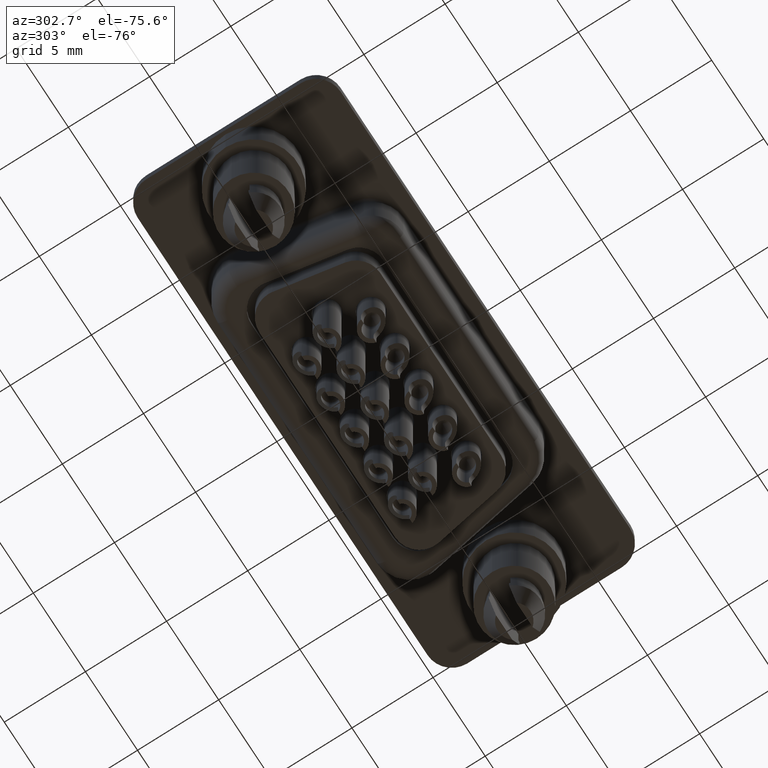
[diagram: clean part render]
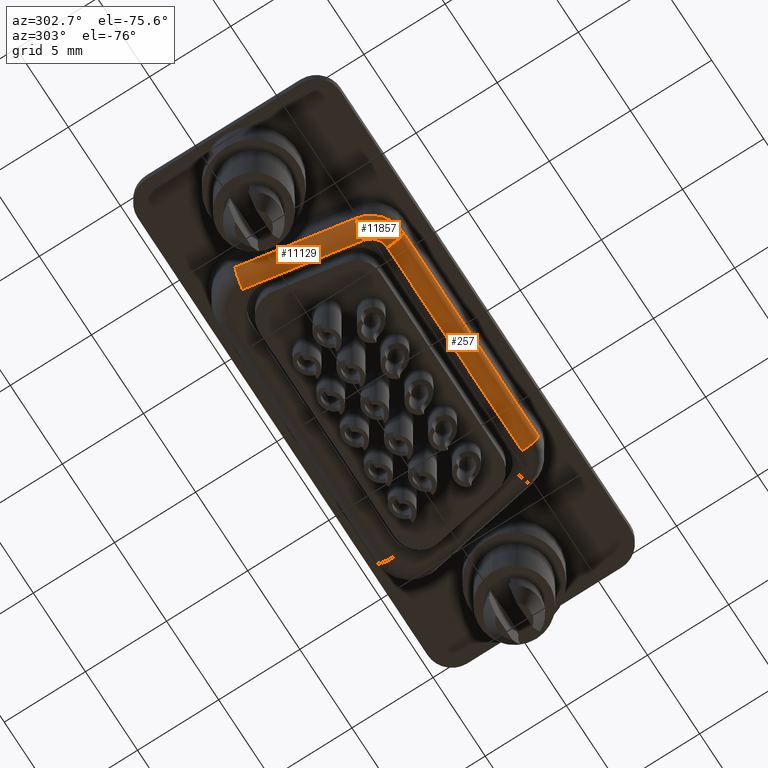
[diagram: same view with one multi-face feature highlighted, each face labeled with its STEP entity id]
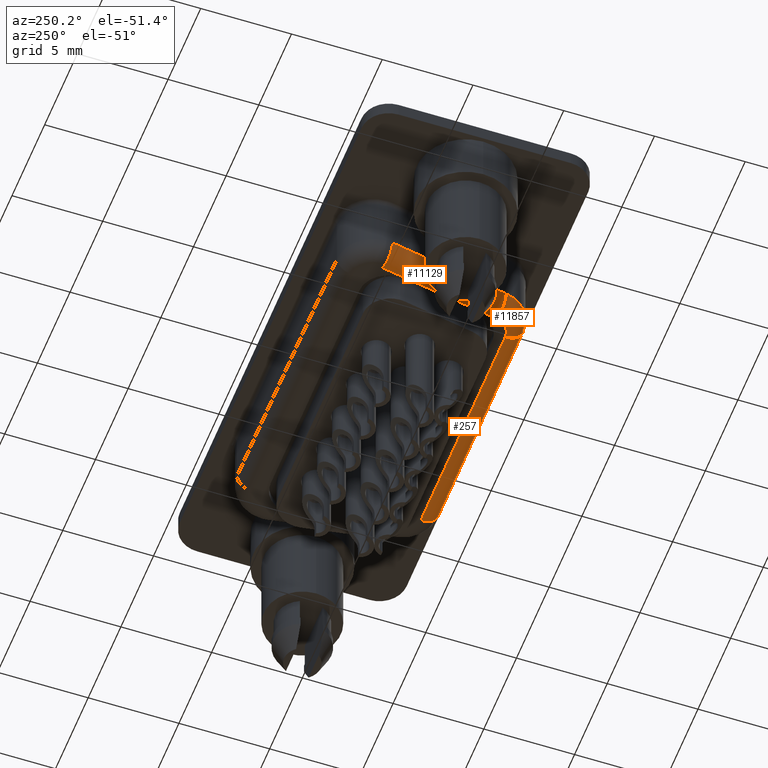
[diagram: same view with one multi-face feature highlighted, each face labeled with its STEP entity id]
A machine part, auxiliary view. The highlighted faces form ONE feature: a constant-radius fillet chain: 3 tangent blend faces with common blend radius 1 mm. The faces share edges in the B-rep.
A second angle (auxiliary view) of the same feature is appended — it is thin or edge-on in the first view.
Their STEP definitions:
[1] entity #11857 (Torus):
#57 = TOROIDAL_SURFACE ( 'NONE', #6810, 0.9999999999999965600, 1.000000000000000000 ) ;
#556 = ORIENTED_EDGE ( 'NONE', *, *, #10045, .F. ) ;
#1896 = VERTEX_POINT ( 'NONE', #10296 ) ;
#1998 = DIRECTION ( 'NONE',  ( 0.0000000000000000000, -0.0000000000000000000, 1.000000000000000000 ) ) ;
#2105 = DIRECTION ( 'NONE',  ( 1.000000000000000000, 0.0000000000000000000, 0.0000000000000000000 ) ) ;
#2385 = CARTESIAN_POINT ( 'NONE',  ( 6.031390770746658500, -3.350000000000002300, -4.500000000000000000 ) ) ;
#2820 = EDGE_CURVE ( 'NONE', #10272, #1896, #8874, .T. ) ;
#3702 = DIRECTION ( 'NONE',  ( 0.0000000000000000000, -0.0000000000000000000, 1.000000000000000000 ) ) ;
#3781 = DIRECTION ( 'NONE',  ( 0.0000000000000000000, 0.0000000000000000000, 1.000000000000000000 ) ) ;
#4282 = DIRECTION ( 'NONE',  ( -1.000000000000000000, -0.0000000000000000000, -0.0000000000000000000 ) ) ;
#5641 = EDGE_CURVE ( 'NONE', #10272, #11968, #14520, .T. ) ;
#6347 = CARTESIAN_POINT ( 'NONE',  ( 5.046583017734453100, -3.523648177666926200, -3.499999999999999600 ) ) ;
#6532 = AXIS2_PLACEMENT_3D ( 'NONE', #11919, #3702, #13254 ) ;
#6803 = CARTESIAN_POINT ( 'NONE',  ( 6.031390770746658500, -4.350000000000002300, -3.499999999999999600 ) ) ;
#6810 = AXIS2_PLACEMENT_3D ( 'NONE', #15639, #1998, #7542 ) ;
#6991 = VERTEX_POINT ( 'NONE', #8741 ) ;
#7542 = DIRECTION ( 'NONE',  ( 1.000000000000000000, 0.0000000000000000000, 0.0000000000000000000 ) ) ;
#7733 = DIRECTION ( 'NONE',  ( -0.9848077530122092400, -0.1736481776669239800, 0.0000000000000000000 ) ) ;
#8277 = CARTESIAN_POINT ( 'NONE',  ( 6.031390770746658500, -4.350000000000002300, -4.500000000000000000 ) ) ;
#8678 = ORIENTED_EDGE ( 'NONE', *, *, #5641, .T. ) ;
#8741 = CARTESIAN_POINT ( 'NONE',  ( 4.061775264722247600, -3.697296355333849100, -3.499999999999999600 ) ) ;
#8874 = CIRCLE ( 'NONE', #11953, 0.9999999999999965600 ) ;
#10045 = EDGE_CURVE ( 'NONE', #6991, #11968, #10668, .T. ) ;
#10157 = FACE_OUTER_BOUND ( 'NONE', #12540, .T. ) ;
#10272 = VERTEX_POINT ( 'NONE', #8277 ) ;
#10296 = CARTESIAN_POINT ( 'NONE',  ( 5.046583017734453100, -3.523648177666926200, -4.500000000000000000 ) ) ;
#10447 = AXIS2_PLACEMENT_3D ( 'NONE', #6347, #15850, #7733 ) ;
#10518 = CARTESIAN_POINT ( 'NONE',  ( 6.031390770746658500, -5.350000000000002300, -3.499999999999999600 ) ) ;
#10668 = CIRCLE ( 'NONE', #6532, 1.999999999999996700 ) ;
#11083 = AXIS2_PLACEMENT_3D ( 'NONE', #6803, #4282, #3781 ) ;
#11739 = ORIENTED_EDGE ( 'NONE', *, *, #2820, .F. ) ;
#11857 = ADVANCED_FACE ( 'NONE', ( #10157 ), #57, .T. ) ;
#11919 = CARTESIAN_POINT ( 'NONE',  ( 6.031390770746658500, -3.350000000000002300, -3.499999999999999600 ) ) ;
#11953 = AXIS2_PLACEMENT_3D ( 'NONE', #2385, #13619, #2105 ) ;
#11968 = VERTEX_POINT ( 'NONE', #10518 ) ;
#12540 = EDGE_LOOP ( 'NONE', ( #8678, #556, #14416, #11739 ) ) ;
#13254 = DIRECTION ( 'NONE',  ( 1.000000000000000000, 0.0000000000000000000, 0.0000000000000000000 ) ) ;
#13619 = DIRECTION ( 'NONE',  ( -0.0000000000000000000, 0.0000000000000000000, -1.000000000000000000 ) ) ;
#14416 = ORIENTED_EDGE ( 'NONE', *, *, #16104, .F. ) ;
#14520 = CIRCLE ( 'NONE', #11083, 1.000000000000000000 ) ;
#15639 = CARTESIAN_POINT ( 'NONE',  ( 6.031390770746658500, -3.350000000000002300, -3.499999999999999600 ) ) ;
#15850 = DIRECTION ( 'NONE',  ( -0.1736481776669239800, 0.9848077530122093500, 0.0000000000000000000 ) ) ;
#16104 = EDGE_CURVE ( 'NONE', #1896, #6991, #16418, .T. ) ;
#16418 = CIRCLE ( 'NONE', #10447, 0.9999999999999996700 ) ;
[2] entity #257 (Cylinder):
#46 = CYLINDRICAL_SURFACE ( 'NONE', #17483, 1.000000000000000000 ) ;
#157 = EDGE_CURVE ( 'NONE', #577, #16551, #8229, .T. ) ;
#257 = ADVANCED_FACE ( 'NONE', ( #14159 ), #46, .T. ) ;
#577 = VERTEX_POINT ( 'NONE', #6097 ) ;
#727 = EDGE_CURVE ( 'NONE', #577, #10272, #7156, .T. ) ;
#1258 = LINE ( 'NONE', #5059, #4480 ) ;
#1616 = EDGE_LOOP ( 'NONE', ( #15707, #7644, #10746, #8492 ) ) ;
#1923 = AXIS2_PLACEMENT_3D ( 'NONE', #13142, #17139, #14293 ) ;
#3496 = VECTOR ( 'NONE', #11776, 1000.000000000000000 ) ;
#3781 = DIRECTION ( 'NONE',  ( 0.0000000000000000000, 0.0000000000000000000, 1.000000000000000000 ) ) ;
#4282 = DIRECTION ( 'NONE',  ( -1.000000000000000000, -0.0000000000000000000, -0.0000000000000000000 ) ) ;
#4480 = VECTOR ( 'NONE', #9279, 1000.000000000000000 ) ;
#5059 = CARTESIAN_POINT ( 'NONE',  ( 6.031390770746658500, -5.350000000000002300, -3.499999999999999600 ) ) ;
#5641 = EDGE_CURVE ( 'NONE', #10272, #11968, #14520, .T. ) ;
#6097 = CARTESIAN_POINT ( 'NONE',  ( 18.96860922925333500, -4.349999999999998800, -4.500000000000000000 ) ) ;
#6803 = CARTESIAN_POINT ( 'NONE',  ( 6.031390770746658500, -4.350000000000002300, -3.499999999999999600 ) ) ;
#7156 = LINE ( 'NONE', #10887, #3496 ) ;
#7644 = ORIENTED_EDGE ( 'NONE', *, *, #14496, .F. ) ;
#8229 = CIRCLE ( 'NONE', #1923, 1.000000000000000000 ) ;
#8277 = CARTESIAN_POINT ( 'NONE',  ( 6.031390770746658500, -4.350000000000002300, -4.500000000000000000 ) ) ;
#8468 = CARTESIAN_POINT ( 'NONE',  ( 18.96860922925333500, -5.349999999999998800, -3.499999999999999600 ) ) ;
#8492 = ORIENTED_EDGE ( 'NONE', *, *, #727, .F. ) ;
#9279 = DIRECTION ( 'NONE',  ( 1.000000000000000000, -0.0000000000000000000, -0.0000000000000000000 ) ) ;
#10272 = VERTEX_POINT ( 'NONE', #8277 ) ;
#10518 = CARTESIAN_POINT ( 'NONE',  ( 6.031390770746658500, -5.350000000000002300, -3.499999999999999600 ) ) ;
#10647 = CARTESIAN_POINT ( 'NONE',  ( 6.031390770746658500, -4.350000000000002300, -3.499999999999999600 ) ) ;
#10746 = ORIENTED_EDGE ( 'NONE', *, *, #5641, .F. ) ;
#10887 = CARTESIAN_POINT ( 'NONE',  ( 6.031390770746658500, -4.350000000000002300, -4.500000000000000000 ) ) ;
#11083 = AXIS2_PLACEMENT_3D ( 'NONE', #6803, #4282, #3781 ) ;
#11496 = DIRECTION ( 'NONE',  ( 0.0000000000000000000, 0.0000000000000000000, 1.000000000000000000 ) ) ;
#11522 = DIRECTION ( 'NONE',  ( -1.000000000000000000, 0.0000000000000000000, 0.0000000000000000000 ) ) ;
#11776 = DIRECTION ( 'NONE',  ( -1.000000000000000000, 0.0000000000000000000, 0.0000000000000000000 ) ) ;
#11968 = VERTEX_POINT ( 'NONE', #10518 ) ;
#13142 = CARTESIAN_POINT ( 'NONE',  ( 18.96860922925333500, -4.349999999999998800, -3.499999999999999600 ) ) ;
#14159 = FACE_OUTER_BOUND ( 'NONE', #1616, .T. ) ;
#14293 = DIRECTION ( 'NONE',  ( 0.0000000000000000000, 0.0000000000000000000, 1.000000000000000000 ) ) ;
#14496 = EDGE_CURVE ( 'NONE', #11968, #16551, #1258, .T. ) ;
#14520 = CIRCLE ( 'NONE', #11083, 1.000000000000000000 ) ;
#15707 = ORIENTED_EDGE ( 'NONE', *, *, #157, .T. ) ;
#16551 = VERTEX_POINT ( 'NONE', #8468 ) ;
#17139 = DIRECTION ( 'NONE',  ( -1.000000000000000000, -0.0000000000000000000, -0.0000000000000000000 ) ) ;
#17483 = AXIS2_PLACEMENT_3D ( 'NONE', #10647, #11522, #11496 ) ;
[3] entity #11129 (Cylinder):
#212 = AXIS2_PLACEMENT_3D ( 'NONE', #5416, #14923, #6802 ) ;
#286 = CARTESIAN_POINT ( 'NONE',  ( 2.880384493975575400, 3.002703644666156800, -3.499999999999999600 ) ) ;
#605 = VECTOR ( 'NONE', #3997, 999.9999999999998900 ) ;
#982 = DIRECTION ( 'NONE',  ( -0.1736481776669240900, 0.9848077530122092400, 0.0000000000000000000 ) ) ;
#1364 = FACE_OUTER_BOUND ( 'NONE', #10051, .T. ) ;
#1896 = VERTEX_POINT ( 'NONE', #10296 ) ;
#2698 = EDGE_CURVE ( 'NONE', #1896, #3104, #6874, .T. ) ;
#2896 = AXIS2_PLACEMENT_3D ( 'NONE', #14494, #6303, #6354 ) ;
#3104 = VERTEX_POINT ( 'NONE', #16978 ) ;
#3997 = DIRECTION ( 'NONE',  ( 0.1736481776669240900, -0.9848077530122092400, -0.0000000000000000000 ) ) ;
#4075 = VECTOR ( 'NONE', #982, 999.9999999999998900 ) ;
#4886 = CIRCLE ( 'NONE', #212, 1.000000000000000200 ) ;
#5416 = CARTESIAN_POINT ( 'NONE',  ( 3.865192246987784400, 3.176351822333080700, -3.499999999999999600 ) ) ;
#6303 = DIRECTION ( 'NONE',  ( -0.1736481776669240600, 0.9848077530122091300, 0.0000000000000000000 ) ) ;
#6347 = CARTESIAN_POINT ( 'NONE',  ( 5.046583017734453100, -3.523648177666926200, -3.499999999999999600 ) ) ;
#6354 = DIRECTION ( 'NONE',  ( -0.9848077530122092400, -0.1736481776669239800, 0.0000000000000000000 ) ) ;
#6595 = CARTESIAN_POINT ( 'NONE',  ( 5.046583017734456600, -3.523648177666925300, -4.500000000000000000 ) ) ;
#6802 = DIRECTION ( 'NONE',  ( -0.9848077530122091300, -0.1736481776669238900, 0.0000000000000000000 ) ) ;
#6874 = LINE ( 'NONE', #6595, #4075 ) ;
#6991 = VERTEX_POINT ( 'NONE', #8741 ) ;
#7733 = DIRECTION ( 'NONE',  ( -0.9848077530122092400, -0.1736481776669239800, 0.0000000000000000000 ) ) ;
#7925 = LINE ( 'NONE', #13484, #605 ) ;
#8252 = CYLINDRICAL_SURFACE ( 'NONE', #2896, 0.9999999999999996700 ) ;
#8357 = VERTEX_POINT ( 'NONE', #286 ) ;
#8741 = CARTESIAN_POINT ( 'NONE',  ( 4.061775264722247600, -3.697296355333849100, -3.499999999999999600 ) ) ;
#8856 = EDGE_CURVE ( 'NONE', #8357, #6991, #7925, .T. ) ;
#10051 = EDGE_LOOP ( 'NONE', ( #10833, #16613, #15899, #16607 ) ) ;
#10296 = CARTESIAN_POINT ( 'NONE',  ( 5.046583017734453100, -3.523648177666926200, -4.500000000000000000 ) ) ;
#10447 = AXIS2_PLACEMENT_3D ( 'NONE', #6347, #15850, #7733 ) ;
#10833 = ORIENTED_EDGE ( 'NONE', *, *, #16104, .T. ) ;
#11129 = ADVANCED_FACE ( 'NONE', ( #1364 ), #8252, .T. ) ;
#13484 = CARTESIAN_POINT ( 'NONE',  ( 2.880384493975575400, 3.002703644666156800, -3.499999999999999600 ) ) ;
#14494 = CARTESIAN_POINT ( 'NONE',  ( 5.046583017734456600, -3.523648177666924800, -3.499999999999999600 ) ) ;
#14923 = DIRECTION ( 'NONE',  ( -0.1736481776669239800, 0.9848077530122093500, 0.0000000000000000000 ) ) ;
#15850 = DIRECTION ( 'NONE',  ( -0.1736481776669239800, 0.9848077530122093500, 0.0000000000000000000 ) ) ;
#15899 = ORIENTED_EDGE ( 'NONE', *, *, #17100, .F. ) ;
#16104 = EDGE_CURVE ( 'NONE', #1896, #6991, #16418, .T. ) ;
#16418 = CIRCLE ( 'NONE', #10447, 0.9999999999999996700 ) ;
#16607 = ORIENTED_EDGE ( 'NONE', *, *, #2698, .F. ) ;
#16613 = ORIENTED_EDGE ( 'NONE', *, *, #8856, .F. ) ;
#16978 = CARTESIAN_POINT ( 'NONE',  ( 3.865192246987784400, 3.176351822333080700, -4.500000000000000000 ) ) ;
#17100 = EDGE_CURVE ( 'NONE', #3104, #8357, #4886, .T. ) ;